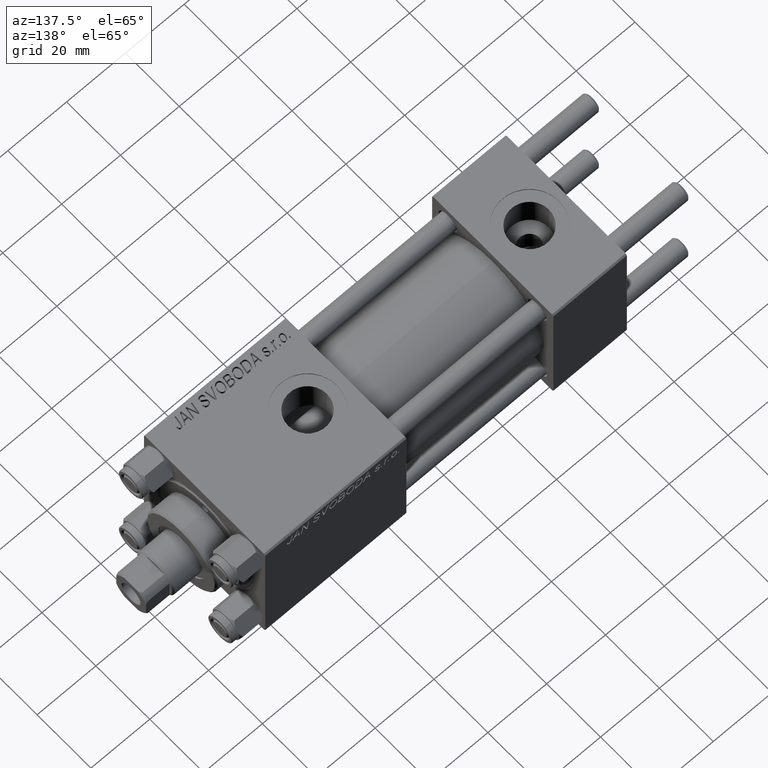
[diagram: clean part render]
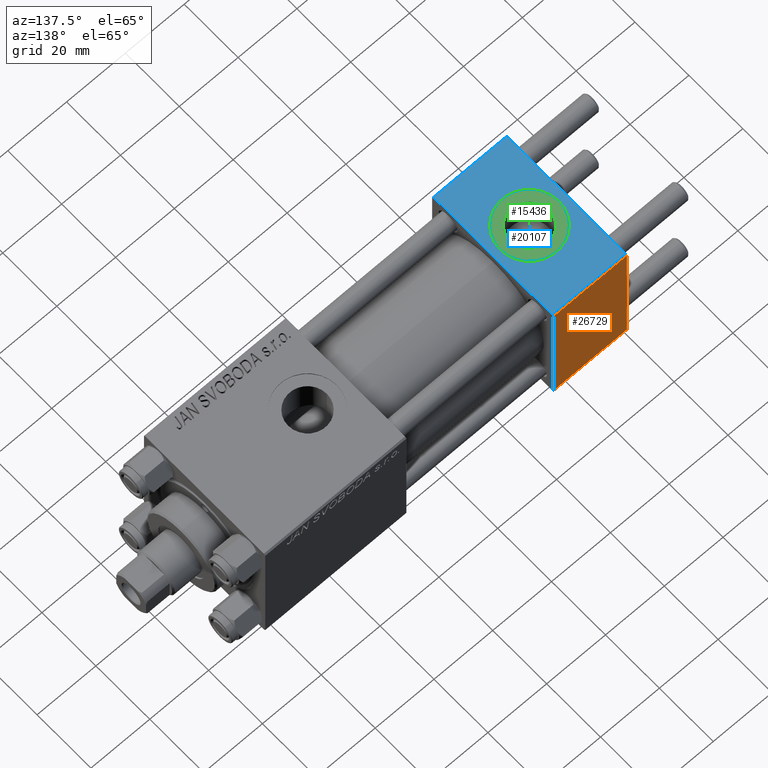
[diagram: same view with three faces highlighted in distinct colors, each labeled with its STEP entity id]
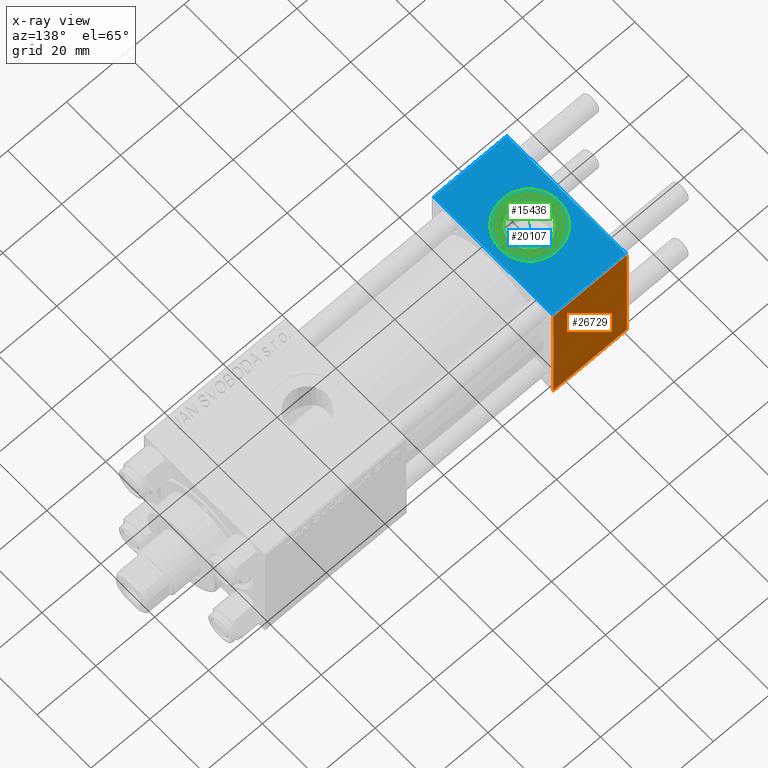
[diagram: x-ray of the same camera — body ghosted, the three highlighted faces saturated]
A machine part, auxiliary view with three faces highlighted in distinct colors.
The next image is the same camera in x-ray (body ghosted, the three faces saturated) — at least one of them is partly hidden behind the body in this view.
Their STEP definitions:

[orange] entity #26729 — the highlighted planar face has unit normal (0, 1, 0).
#4680 = VERTEX_POINT ( 'NONE', #41340 ) ;
#4763 = DIRECTION ( 'NONE',  ( -1.000000000000000000, 0.000000000000000000, 0.000000000000000000 ) ) ;
#4980 = DIRECTION ( 'NONE',  ( 0.000000000000000000, 0.000000000000000000, -1.000000000000000000 ) ) ;
#5260 = LINE ( 'NONE', #12853, #16174 ) ;
#5477 = CARTESIAN_POINT ( 'NONE',  ( 0.000000000000000000, 22.50000000000000000, 22.50000000000000355 ) ) ;
#5925 = VECTOR ( 'NONE', #21957, 1000.000000000000000 ) ;
#6505 = CARTESIAN_POINT ( 'NONE',  ( 25.00000000000000000, 22.50000000000000000, 22.50000000000000355 ) ) ;
#8729 = ORIENTED_EDGE ( 'NONE', *, *, #34433, .T. ) ;
#12853 = CARTESIAN_POINT ( 'NONE',  ( 25.00000000000000000, 22.50000000000000000, -21.99999999999998224 ) ) ;
#14286 = FACE_OUTER_BOUND ( 'NONE', #27863, .T. ) ;
#16174 = VECTOR ( 'NONE', #4763, 1000.000000000000000 ) ;
#17763 = VERTEX_POINT ( 'NONE', #42184 ) ;
#19541 = VECTOR ( 'NONE', #35280, 1000.000000000000000 ) ;
#20428 = LINE ( 'NONE', #5477, #24368 ) ;
#20998 = CARTESIAN_POINT ( 'NONE',  ( 25.00000000000000000, 22.50000000000000000, 21.99999999999999645 ) ) ;
#21278 = LINE ( 'NONE', #27449, #19541 ) ;
#21638 = DIRECTION ( 'NONE',  ( -0.000000000000000000, 1.000000000000000000, 0.000000000000000000 ) ) ;
#21957 = DIRECTION ( 'NONE',  ( 0.000000000000000000, 0.000000000000000000, -1.000000000000000000 ) ) ;
#22399 = PLANE ( 'NONE',  #36862 ) ;
#23867 = VERTEX_POINT ( 'NONE', #28572 ) ;
#24368 = VECTOR ( 'NONE', #4980, 1000.000000000000000 ) ;
#26729 = ADVANCED_FACE ( 'NONE', ( #14286 ), #22399, .T. ) ;
#27449 = CARTESIAN_POINT ( 'NONE',  ( 25.00000000000000000, 22.50000000000000000, 21.99999999999999645 ) ) ;
#27863 = EDGE_LOOP ( 'NONE', ( #48810, #45957, #34471, #8729 ) ) ;
#28572 = CARTESIAN_POINT ( 'NONE',  ( 0.000000000000000000, 22.50000000000000000, 21.99999999999999645 ) ) ;
#29246 = DIRECTION ( 'NONE',  ( 0.000000000000000000, -0.000000000000000000, 1.000000000000000000 ) ) ;
#30274 = EDGE_CURVE ( 'NONE', #4680, #17763, #5260, .T. ) ;
#33272 = EDGE_CURVE ( 'NONE', #23867, #17763, #20428, .T. ) ;
#34433 = EDGE_CURVE ( 'NONE', #23867, #41172, #21278, .T. ) ;
#34471 = ORIENTED_EDGE ( 'NONE', *, *, #33272, .F. ) ;
#35280 = DIRECTION ( 'NONE',  ( 1.000000000000000000, 0.000000000000000000, 0.000000000000000000 ) ) ;
#36862 = AXIS2_PLACEMENT_3D ( 'NONE', #45161, #21638, #29246 ) ;
#41172 = VERTEX_POINT ( 'NONE', #20998 ) ;
#41340 = CARTESIAN_POINT ( 'NONE',  ( 25.00000000000000000, 22.50000000000000000, -21.99999999999996803 ) ) ;
#41519 = EDGE_CURVE ( 'NONE', #41172, #4680, #45734, .T. ) ;
#42184 = CARTESIAN_POINT ( 'NONE',  ( 0.000000000000000000, 22.50000000000000000, -21.99999999999996803 ) ) ;
#45161 = CARTESIAN_POINT ( 'NONE',  ( 25.00000000000000000, 22.50000000000000000, 22.50000000000000355 ) ) ;
#45734 = LINE ( 'NONE', #6505, #5925 ) ;
#45957 = ORIENTED_EDGE ( 'NONE', *, *, #30274, .T. ) ;
#48810 = ORIENTED_EDGE ( 'NONE', *, *, #41519, .T. ) ;

[blue] entity #20107 — the highlighted planar face has unit normal (0, 0, -1).
#1632 = VERTEX_POINT ( 'NONE', #2682 ) ;
#2492 = CARTESIAN_POINT ( 'NONE',  ( 12.50000000000000000, -1.734723475976807094E-15, 22.50000000000000000 ) ) ;
#2601 = AXIS2_PLACEMENT_3D ( 'NONE', #37316, #2645, #22634 ) ;
#2645 = DIRECTION ( 'NONE',  ( 0.000000000000000000, 7.709882115452476934E-17, -1.000000000000000000 ) ) ;
#2680 = VECTOR ( 'NONE', #22462, 1000.000000000000000 ) ;
#2682 = CARTESIAN_POINT ( 'NONE',  ( 0.000000000000000000, 21.99999999999999289, 22.50000000000000355 ) ) ;
#2893 = FACE_OUTER_BOUND ( 'NONE', #5502, .T. ) ;
#3004 = ORIENTED_EDGE ( 'NONE', *, *, #38658, .F. ) ;
#4231 = CARTESIAN_POINT ( 'NONE',  ( 25.00000000000000000, -21.99999999999999289, 22.50000000000000000 ) ) ;
#4556 = VERTEX_POINT ( 'NONE', #37666 ) ;
#5502 = EDGE_LOOP ( 'NONE', ( #17689, #35070, #20001, #21772 ) ) ;
#6196 = VERTEX_POINT ( 'NONE', #20539 ) ;
#7179 = PLANE ( 'NONE',  #2601 ) ;
#7584 = CARTESIAN_POINT ( 'NONE',  ( 12.50000000000000000, -1.734723475976807094E-15, 22.50000000000000000 ) ) ;
#9296 = LINE ( 'NONE', #40422, #25260 ) ;
#9814 = VECTOR ( 'NONE', #21775, 1000.000000000000000 ) ;
#11587 = DIRECTION ( 'NONE',  ( 1.000000000000000000, 0.000000000000000000, 0.000000000000000000 ) ) ;
#14740 = AXIS2_PLACEMENT_3D ( 'NONE', #2492, #17654, #22486 ) ;
#15907 = DIRECTION ( 'NONE',  ( 1.000000000000000000, 0.000000000000000000, 0.000000000000000000 ) ) ;
#17654 = DIRECTION ( 'NONE',  ( 0.000000000000000000, 0.000000000000000000, 1.000000000000000000 ) ) ;
#17689 = ORIENTED_EDGE ( 'NONE', *, *, #18385, .T. ) ;
#17942 = CIRCLE ( 'NONE', #14740, 9.999999999999998224 ) ;
#18385 = EDGE_CURVE ( 'NONE', #1632, #4556, #29390, .T. ) ;
#18818 = FACE_BOUND ( 'NONE', #47418, .T. ) ;
#19943 = VERTEX_POINT ( 'NONE', #44139 ) ;
#19993 = ORIENTED_EDGE ( 'NONE', *, *, #34712, .F. ) ;
#20001 = ORIENTED_EDGE ( 'NONE', *, *, #41442, .F. ) ;
#20107 = ADVANCED_FACE ( 'NONE', ( #18818, #2893 ), #7179, .F. ) ;
#20539 = CARTESIAN_POINT ( 'NONE',  ( 25.00000000000000000, 21.99999999999999289, 22.50000000000000355 ) ) ;
#21100 = EDGE_CURVE ( 'NONE', #6196, #1632, #9296, .T. ) ;
#21765 = VERTEX_POINT ( 'NONE', #30131 ) ;
#21772 = ORIENTED_EDGE ( 'NONE', *, *, #21100, .T. ) ;
#21775 = DIRECTION ( 'NONE',  ( 0.000000000000000000, -1.000000000000000000, -7.709882115452476934E-17 ) ) ;
#22462 = DIRECTION ( 'NONE',  ( 0.000000000000000000, -1.000000000000000000, -7.709882115452476934E-17 ) ) ;
#22486 = DIRECTION ( 'NONE',  ( 1.000000000000000000, 0.000000000000000000, 0.000000000000000000 ) ) ;
#22634 = DIRECTION ( 'NONE',  ( 0.000000000000000000, 1.000000000000000000, 7.709882115452476934E-17 ) ) ;
#23036 = DIRECTION ( 'NONE',  ( 0.000000000000000000, 0.000000000000000000, 1.000000000000000000 ) ) ;
#25260 = VECTOR ( 'NONE', #27817, 1000.000000000000000 ) ;
#26845 = CIRCLE ( 'NONE', #45426, 9.999999999999998224 ) ;
#27817 = DIRECTION ( 'NONE',  ( -1.000000000000000000, 0.000000000000000000, 0.000000000000000000 ) ) ;
#29390 = LINE ( 'NONE', #44795, #9814 ) ;
#30131 = CARTESIAN_POINT ( 'NONE',  ( 22.50000000000000000, -1.734723475976807094E-15, 22.50000000000000000 ) ) ;
#33228 = EDGE_CURVE ( 'NONE', #4556, #45059, #43204, .T. ) ;
#34712 = EDGE_CURVE ( 'NONE', #19943, #21765, #26845, .T. ) ;
#35070 = ORIENTED_EDGE ( 'NONE', *, *, #33228, .T. ) ;
#37316 = CARTESIAN_POINT ( 'NONE',  ( 25.00000000000000000, 22.50000000000000000, 22.50000000000000355 ) ) ;
#37666 = CARTESIAN_POINT ( 'NONE',  ( 0.000000000000000000, -21.99999999999997868, 22.50000000000000000 ) ) ;
#38658 = EDGE_CURVE ( 'NONE', #21765, #19943, #17942, .T. ) ;
#40422 = CARTESIAN_POINT ( 'NONE',  ( 0.000000000000000000, 21.99999999999999289, 22.50000000000000355 ) ) ;
#41442 = EDGE_CURVE ( 'NONE', #6196, #45059, #48268, .T. ) ;
#41716 = CARTESIAN_POINT ( 'NONE',  ( 25.00000000000000000, -21.99999999999997868, 22.50000000000000000 ) ) ;
#43204 = LINE ( 'NONE', #4231, #43748 ) ;
#43748 = VECTOR ( 'NONE', #11587, 1000.000000000000000 ) ;
#44139 = CARTESIAN_POINT ( 'NONE',  ( 2.500000000000003997, -5.100766768294543310E-16, 22.50000000000000000 ) ) ;
#44461 = CARTESIAN_POINT ( 'NONE',  ( 25.00000000000000000, 22.50000000000000000, 22.50000000000000355 ) ) ;
#44795 = CARTESIAN_POINT ( 'NONE',  ( 0.000000000000000000, 22.50000000000000000, 22.50000000000000355 ) ) ;
#45059 = VERTEX_POINT ( 'NONE', #41716 ) ;
#45426 = AXIS2_PLACEMENT_3D ( 'NONE', #7584, #23036, #15907 ) ;
#47418 = EDGE_LOOP ( 'NONE', ( #3004, #19993 ) ) ;
#48268 = LINE ( 'NONE', #44461, #2680 ) ;

[green] entity #15436 — the highlighted planar face has unit normal (0, 0, 1).
#61 = CARTESIAN_POINT ( 'NONE',  ( 12.50000000000000000, -1.734723475976807094E-15, 22.30000000000000071 ) ) ;
#112 = ORIENTED_EDGE ( 'NONE', *, *, #4056, .F. ) ;
#307 = DIRECTION ( 'NONE',  ( 1.000000000000000000, 0.000000000000000000, 0.000000000000000000 ) ) ;
#904 = DIRECTION ( 'NONE',  ( 0.000000000000000000, 0.000000000000000000, 1.000000000000000000 ) ) ;
#4056 = EDGE_CURVE ( 'NONE', #18814, #38726, #44205, .T. ) ;
#4148 = CARTESIAN_POINT ( 'NONE',  ( 19.07999999999999829, -1.734723475976807094E-15, 22.30000000000000071 ) ) ;
#5396 = EDGE_CURVE ( 'NONE', #20943, #31426, #34584, .T. ) ;
#7091 = DIRECTION ( 'NONE',  ( 1.000000000000000000, 0.000000000000000000, -0.000000000000000000 ) ) ;
#11016 = CARTESIAN_POINT ( 'NONE',  ( 12.50000000000000000, -1.734723475976807094E-15, 22.30000000000000071 ) ) ;
#12146 = EDGE_LOOP ( 'NONE', ( #44999, #32451 ) ) ;
#14020 = ORIENTED_EDGE ( 'NONE', *, *, #47565, .F. ) ;
#15436 = ADVANCED_FACE ( 'NONE', ( #21540, #22294 ), #25594, .T. ) ;
#16249 = AXIS2_PLACEMENT_3D ( 'NONE', #11016, #26471, #41881 ) ;
#16329 = DIRECTION ( 'NONE',  ( 1.000000000000000000, 0.000000000000000000, 0.000000000000000000 ) ) ;
#16383 = CARTESIAN_POINT ( 'NONE',  ( 22.50000000000000000, -1.734723475976807094E-15, 22.30000000000000071 ) ) ;
#17164 = CARTESIAN_POINT ( 'NONE',  ( 12.50000000000000000, -1.734723475976807094E-15, 22.30000000000000071 ) ) ;
#18814 = VERTEX_POINT ( 'NONE', #4148 ) ;
#20123 = CARTESIAN_POINT ( 'NONE',  ( 12.50000000000000000, -1.734723475976807094E-15, 22.30000000000000071 ) ) ;
#20655 = CIRCLE ( 'NONE', #47316, 6.579999999999999183 ) ;
#20943 = VERTEX_POINT ( 'NONE', #16383 ) ;
#21054 = AXIS2_PLACEMENT_3D ( 'NONE', #37724, #33687, #7091 ) ;
#21540 = FACE_BOUND ( 'NONE', #43346, .T. ) ;
#22294 = FACE_OUTER_BOUND ( 'NONE', #12146, .T. ) ;
#22977 = CARTESIAN_POINT ( 'NONE',  ( 2.500000000000003997, -5.100766768294543310E-16, 22.30000000000000071 ) ) ;
#25594 = PLANE ( 'NONE',  #21054 ) ;
#26471 = DIRECTION ( 'NONE',  ( 0.000000000000000000, 0.000000000000000000, 1.000000000000000000 ) ) ;
#27785 = CARTESIAN_POINT ( 'NONE',  ( 5.920000000000002593, -9.289058821378490386E-16, 22.30000000000000071 ) ) ;
#29214 = CIRCLE ( 'NONE', #16249, 9.999999999999998224 ) ;
#31426 = VERTEX_POINT ( 'NONE', #22977 ) ;
#32451 = ORIENTED_EDGE ( 'NONE', *, *, #36963, .T. ) ;
#33687 = DIRECTION ( 'NONE',  ( 0.000000000000000000, 0.000000000000000000, 1.000000000000000000 ) ) ;
#33999 = DIRECTION ( 'NONE',  ( 0.000000000000000000, 0.000000000000000000, 1.000000000000000000 ) ) ;
#34554 = AXIS2_PLACEMENT_3D ( 'NONE', #61, #33999, #307 ) ;
#34584 = CIRCLE ( 'NONE', #49105, 9.999999999999998224 ) ;
#36963 = EDGE_CURVE ( 'NONE', #31426, #20943, #29214, .T. ) ;
#37724 = CARTESIAN_POINT ( 'NONE',  ( 12.50000000000000000, -1.734723475976807094E-15, 22.30000000000000071 ) ) ;
#38726 = VERTEX_POINT ( 'NONE', #27785 ) ;
#41881 = DIRECTION ( 'NONE',  ( 1.000000000000000000, 0.000000000000000000, 0.000000000000000000 ) ) ;
#43346 = EDGE_LOOP ( 'NONE', ( #112, #14020 ) ) ;
#44205 = CIRCLE ( 'NONE', #34554, 6.579999999999999183 ) ;
#44999 = ORIENTED_EDGE ( 'NONE', *, *, #5396, .T. ) ;
#47316 = AXIS2_PLACEMENT_3D ( 'NONE', #20123, #904, #16329 ) ;
#47565 = EDGE_CURVE ( 'NONE', #38726, #18814, #20655, .T. ) ;
#48051 = DIRECTION ( 'NONE',  ( 0.000000000000000000, 0.000000000000000000, 1.000000000000000000 ) ) ;
#48808 = DIRECTION ( 'NONE',  ( 1.000000000000000000, 0.000000000000000000, 0.000000000000000000 ) ) ;
#49105 = AXIS2_PLACEMENT_3D ( 'NONE', #17164, #48051, #48808 ) ;